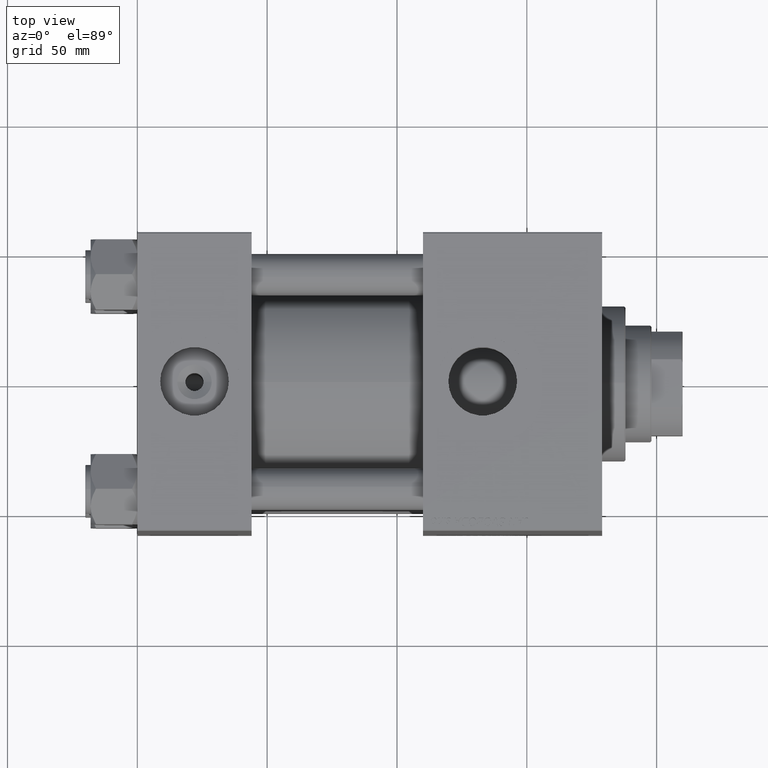
[diagram: clean part render]
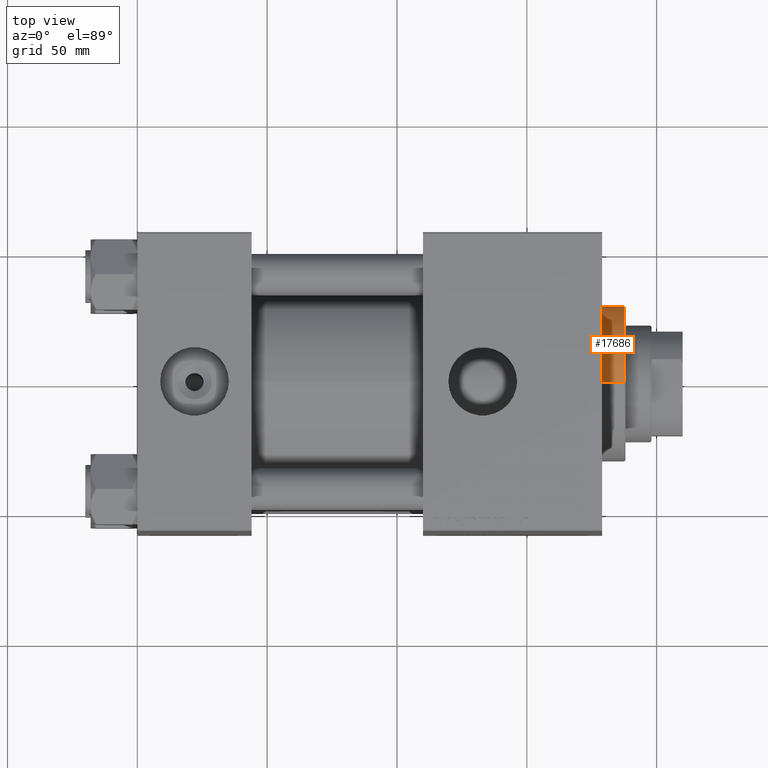
[diagram: same view with one face highlighted and labeled with its STEP entity id]
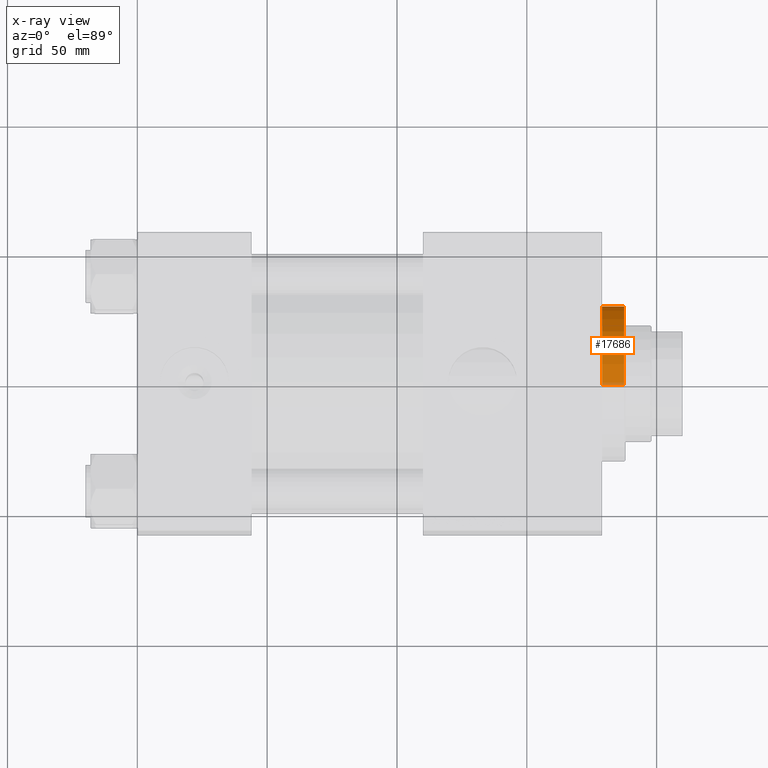
[diagram: x-ray of the same camera — body ghosted, the highlighted face saturated]
A machine part, top view. The second image highlights one B-rep face of the part: STEP entity #17686.
The next image is the same camera in x-ray: the body ghosted, the highlighted face saturated — about 3% of this face is hidden behind the body in this view.
In plain terms, the highlighted cylindrical surface (partial cylindrical patch) has radius 30 mm, axis along (-1, -0, -0).
Its self-contained STEP definition (entity closure, byte-faithful):
#526 = ORIENTED_EDGE ( 'NONE', *, *, #36836, .T. ) ;
#1511 = AXIS2_PLACEMENT_3D ( 'NONE', #27132, #11994, #15084 ) ;
#1720 = VERTEX_POINT ( 'NONE', #11252 ) ;
#5308 = ORIENTED_EDGE ( 'NONE', *, *, #15898, .F. ) ;
#8970 = CARTESIAN_POINT ( 'NONE',  ( 30.00000000000000000, 3.673940397442059178E-15, 37.20000000000000284 ) ) ;
#10965 = EDGE_LOOP ( 'NONE', ( #11038, #33633, #526, #5308 ) ) ;
#11038 = ORIENTED_EDGE ( 'NONE', *, *, #50213, .T. ) ;
#11252 = CARTESIAN_POINT ( 'NONE',  ( -30.00000000000000000, 0.000000000000000000, 37.20000000000000284 ) ) ;
#11994 = DIRECTION ( 'NONE',  ( 0.000000000000000000, 0.000000000000000000, 1.000000000000000000 ) ) ;
#12370 = DIRECTION ( 'NONE',  ( 0.000000000000000000, 0.000000000000000000, -1.000000000000000000 ) ) ;
#12870 = CARTESIAN_POINT ( 'NONE',  ( -30.00000000000000000, 0.000000000000000000, 37.69999999999999574 ) ) ;
#15084 = DIRECTION ( 'NONE',  ( 1.000000000000000000, 0.000000000000000000, 0.000000000000000000 ) ) ;
#15459 = DIRECTION ( 'NONE',  ( -0.000000000000000000, -0.000000000000000000, -1.000000000000000000 ) ) ;
#15898 = EDGE_CURVE ( 'NONE', #1720, #35674, #16721, .T. ) ;
#16721 = LINE ( 'NONE', #12870, #21069 ) ;
#17686 = ADVANCED_FACE ( 'NONE', ( #40029 ), #47217, .T. ) ;
#19309 = CARTESIAN_POINT ( 'NONE',  ( 0.000000000000000000, 0.000000000000000000, 37.69999999999999574 ) ) ;
#20550 = DIRECTION ( 'NONE',  ( 1.000000000000000000, 0.000000000000000000, 0.000000000000000000 ) ) ;
#21069 = VECTOR ( 'NONE', #28004, 1000.000000000000000 ) ;
#21093 = EDGE_CURVE ( 'NONE', #23801, #26674, #42155, .T. ) ;
#22441 = CARTESIAN_POINT ( 'NONE',  ( 30.00000000000000000, 3.673940397442059178E-15, 37.69999999999999574 ) ) ;
#23801 = VERTEX_POINT ( 'NONE', #8970 ) ;
#25997 = VECTOR ( 'NONE', #41636, 1000.000000000000000 ) ;
#26002 = AXIS2_PLACEMENT_3D ( 'NONE', #19309, #15459, #43382 ) ;
#26674 = VERTEX_POINT ( 'NONE', #44348 ) ;
#27132 = CARTESIAN_POINT ( 'NONE',  ( 0.000000000000000000, 0.000000000000000000, 28.69999999999999929 ) ) ;
#28004 = DIRECTION ( 'NONE',  ( -0.000000000000000000, -0.000000000000000000, -1.000000000000000000 ) ) ;
#33633 = ORIENTED_EDGE ( 'NONE', *, *, #21093, .T. ) ;
#35674 = VERTEX_POINT ( 'NONE', #47224 ) ;
#36836 = EDGE_CURVE ( 'NONE', #26674, #35674, #45669, .T. ) ;
#40029 = FACE_OUTER_BOUND ( 'NONE', #10965, .T. ) ;
#40297 = AXIS2_PLACEMENT_3D ( 'NONE', #43865, #12370, #20550 ) ;
#41636 = DIRECTION ( 'NONE',  ( -0.000000000000000000, -0.000000000000000000, -1.000000000000000000 ) ) ;
#41928 = CIRCLE ( 'NONE', #40297, 30.00000000000000000 ) ;
#42155 = LINE ( 'NONE', #22441, #25997 ) ;
#43382 = DIRECTION ( 'NONE',  ( -1.000000000000000000, 0.000000000000000000, 0.000000000000000000 ) ) ;
#43865 = CARTESIAN_POINT ( 'NONE',  ( 0.000000000000000000, 0.000000000000000000, 37.20000000000000284 ) ) ;
#44348 = CARTESIAN_POINT ( 'NONE',  ( 30.00000000000000000, 3.673940397442059178E-15, 28.69999999999999929 ) ) ;
#45669 = CIRCLE ( 'NONE', #1511, 30.00000000000000000 ) ;
#47217 = CYLINDRICAL_SURFACE ( 'NONE', #26002, 30.00000000000000000 ) ;
#47224 = CARTESIAN_POINT ( 'NONE',  ( -30.00000000000000000, 0.000000000000000000, 28.69999999999999929 ) ) ;
#50213 = EDGE_CURVE ( 'NONE', #1720, #23801, #41928, .T. ) ;